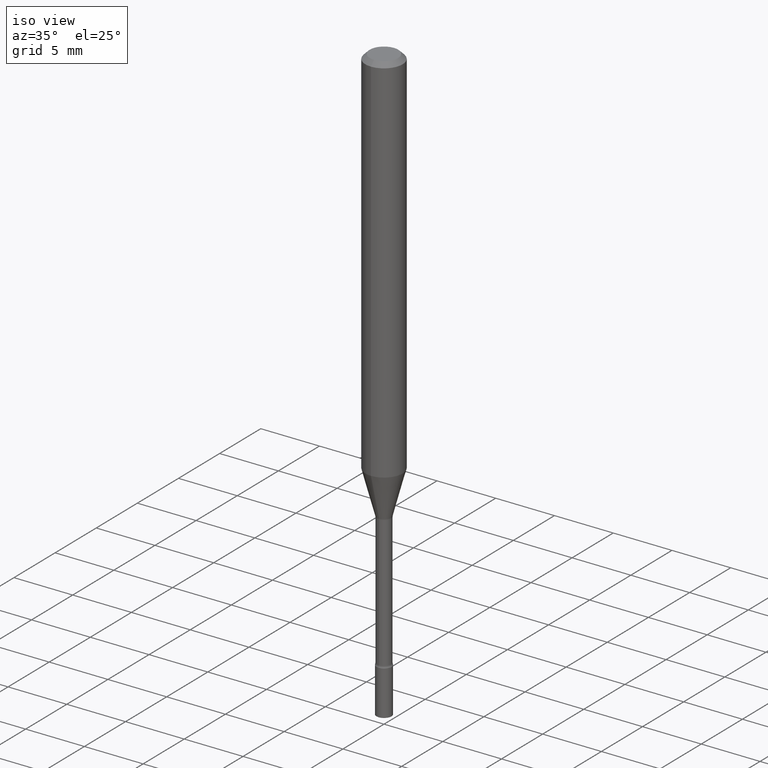
[diagram: clean part render]
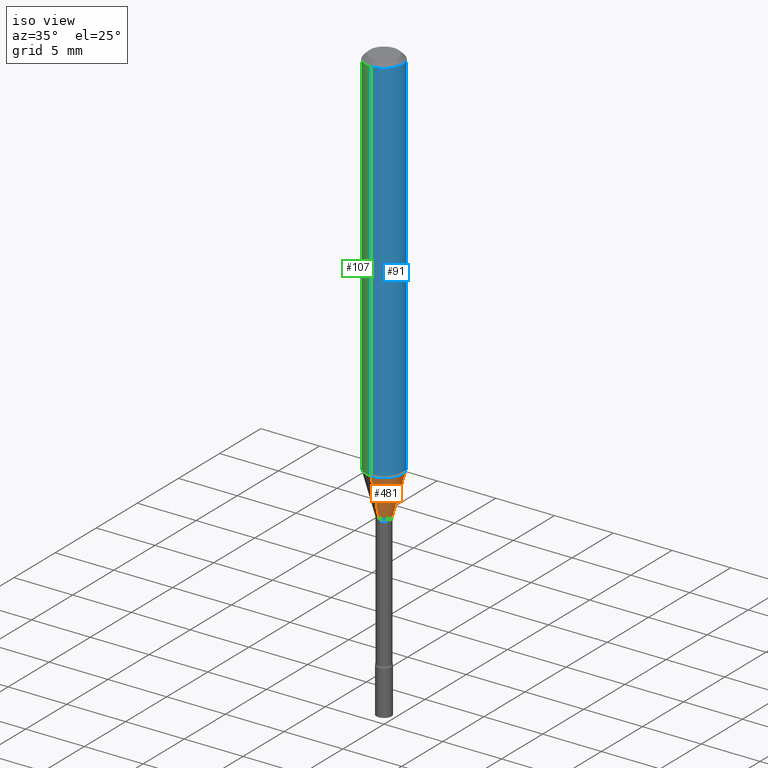
[diagram: same view with three faces highlighted in distinct colors, each labeled with its STEP entity id]
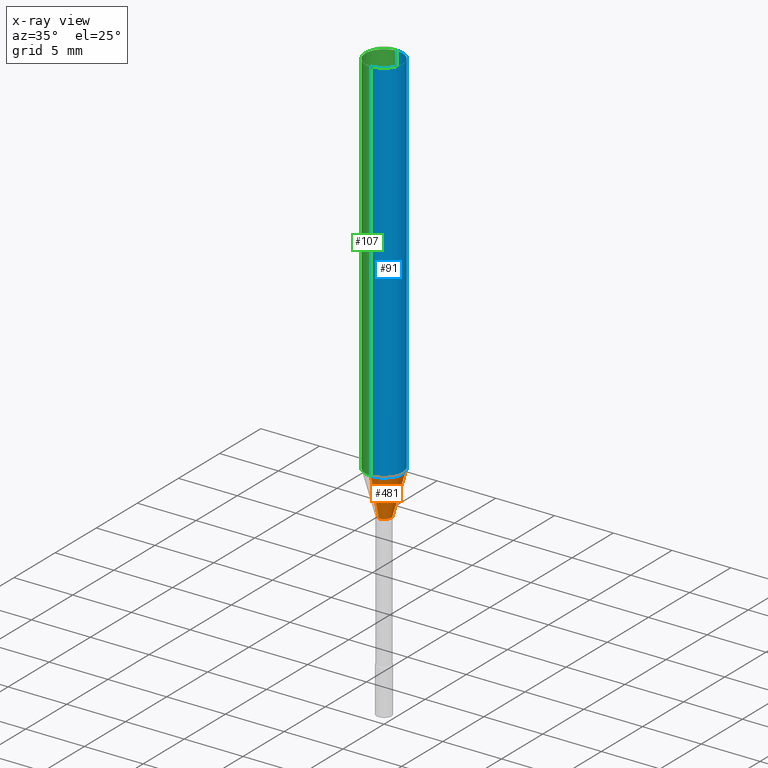
[diagram: x-ray of the same camera — body ghosted, the three highlighted faces saturated]
A machine part, iso view with three faces highlighted in distinct colors.
The next image is the same camera in x-ray (body ghosted, the three faces saturated) — at least one of them is partly hidden behind the body in this view.
Their STEP definitions:

[orange] entity #481 — the highlighted conical surface has half-angle 15 deg.
#11 = DIRECTION ( 'NONE',  ( -2.445460790589413958E-29, 3.491492817632439636E-15, 1.000000000000000000 ) ) ;
#20 = VECTOR ( 'NONE', #201, 39.37007874015748143 ) ;
#23 = CARTESIAN_POINT ( 'NONE',  ( 1.706092163947572763E-16, 0.02401111260565909691, -1.398092501787273179 ) ) ;
#43 = CARTESIAN_POINT ( 'NONE',  ( 3.067708334007688547E-29, -4.379903229688440417E-15, -1.254450018504814413 ) ) ;
#51 = AXIS2_PLACEMENT_3D ( 'NONE', #221, #458, #335 ) ;
#59 = ORIENTED_EDGE ( 'NONE', *, *, #497, .T. ) ;
#64 = VECTOR ( 'NONE', #284, 39.37007874015748143 ) ;
#95 = ORIENTED_EDGE ( 'NONE', *, *, #111, .T. ) ;
#102 = LINE ( 'NONE', #274, #20 ) ;
#111 = EDGE_CURVE ( 'NONE', #515, #122, #112, .T. ) ;
#112 = LINE ( 'NONE', #23, #64 ) ;
#116 = ORIENTED_EDGE ( 'NONE', *, *, #195, .F. ) ;
#122 = VERTEX_POINT ( 'NONE', #283 ) ;
#126 = DIRECTION ( 'NONE',  ( -6.982962677686265922E-15, -1.000000000000000000, 4.370956789862821150E-15 ) ) ;
#132 = FACE_OUTER_BOUND ( 'NONE', #290, .T. ) ;
#168 = DIRECTION ( 'NONE',  ( -2.445460790589413958E-29, 3.491492817632439636E-15, 1.000000000000000000 ) ) ;
#176 = CARTESIAN_POINT ( 'NONE',  ( -1.676687031750395996E-16, -0.02401111260566886341, -1.398092501787273179 ) ) ;
#184 = DIRECTION ( 'NONE',  ( -6.982962677686265133E-15, -1.000000000000000000, 0.000000000000000000 ) ) ;
#195 = EDGE_CURVE ( 'NONE', #419, #233, #102, .T. ) ;
#201 = DIRECTION ( 'NONE',  ( -1.807323732225330928E-15, -0.2588190451025182970, 0.9659258262890689783 ) ) ;
#221 = CARTESIAN_POINT ( 'NONE',  ( 3.418980394737836863E-29, -4.881429928376032930E-15, -1.398092501787273179 ) ) ;
#233 = VERTEX_POINT ( 'NONE', #399 ) ;
#238 = CIRCLE ( 'NONE', #447, 0.02401111260566398189 ) ;
#243 = AXIS2_PLACEMENT_3D ( 'NONE', #43, #168, #126 ) ;
#274 = CARTESIAN_POINT ( 'NONE',  ( -1.676687031750395996E-16, -0.02401111260566886341, -1.398092501787273179 ) ) ;
#283 = CARTESIAN_POINT ( 'NONE',  ( 4.440892098500930859E-16, 0.06249999999999559380, -1.254450018504814635 ) ) ;
#284 = DIRECTION ( 'NONE',  ( 1.839019923739601104E-15, 0.2588190451025250693, 0.9659258262890670910 ) ) ;
#290 = EDGE_LOOP ( 'NONE', ( #59, #95, #457, #116 ) ) ;
#310 = EDGE_CURVE ( 'NONE', #233, #122, #487, .T. ) ;
#335 = DIRECTION ( 'NONE',  ( -6.982962677686265133E-15, -1.000000000000000000, 0.000000000000000000 ) ) ;
#399 = CARTESIAN_POINT ( 'NONE',  ( -4.364351673553610517E-16, -0.06250000000000439926, -1.254450018504814190 ) ) ;
#418 = CARTESIAN_POINT ( 'NONE',  ( 3.418980394737836863E-29, -4.881429928376032930E-15, -1.398092501787273179 ) ) ;
#419 = VERTEX_POINT ( 'NONE', #176 ) ;
#447 = AXIS2_PLACEMENT_3D ( 'NONE', #418, #11, #184 ) ;
#455 = CONICAL_SURFACE ( 'NONE', #51, 0.02401111260566398189, 0.2617993877991502960 ) ;
#457 = ORIENTED_EDGE ( 'NONE', *, *, #310, .F. ) ;
#458 = DIRECTION ( 'NONE',  ( -2.445460790589413958E-29, 3.491492817632439636E-15, 1.000000000000000000 ) ) ;
#481 = ADVANCED_FACE ( 'NONE', ( #132 ), #455, .T. ) ;
#487 = CIRCLE ( 'NONE', #243, 0.06250000000000000000 ) ;
#493 = CARTESIAN_POINT ( 'NONE',  ( 3.073492131224253537E-16, 0.02401111260565909691, -1.398092501787273179 ) ) ;
#497 = EDGE_CURVE ( 'NONE', #419, #515, #238, .T. ) ;
#515 = VERTEX_POINT ( 'NONE', #493 ) ;

[blue] entity #91 — the highlighted cylindrical surface (edge-blend (fillet) strip) has radius 1.5875 mm, axis along (-0, 0, 1).
#1 = CARTESIAN_POINT ( 'NONE',  ( -4.364351673553912750E-16, -0.06250000000000005551, -0.01499999999999981209 ) ) ;
#33 = ORIENTED_EDGE ( 'NONE', *, *, #118, .F. ) ;
#43 = CARTESIAN_POINT ( 'NONE',  ( 3.067708334007688547E-29, -4.379903229688440417E-15, -1.254450018504814413 ) ) ;
#49 = VECTOR ( 'NONE', #363, 39.37007874015748143 ) ;
#63 = CARTESIAN_POINT ( 'NONE',  ( 0.000000000000000000, 0.000000000000000000, 0.000000000000000000 ) ) ;
#82 = CARTESIAN_POINT ( 'NONE',  ( 4.440892098500625669E-16, 0.06250000000000000000, -2.182183011020274772E-16 ) ) ;
#91 = ADVANCED_FACE ( 'NONE', ( #152 ), #507, .T. ) ;
#97 = CARTESIAN_POINT ( 'NONE',  ( 4.440892098500934804E-16, 0.06249999999999995143, -0.01500000000000024751 ) ) ;
#118 = EDGE_CURVE ( 'NONE', #233, #333, #280, .T. ) ;
#122 = VERTEX_POINT ( 'NONE', #283 ) ;
#126 = DIRECTION ( 'NONE',  ( -6.982962677686265922E-15, -1.000000000000000000, 4.370956789862821150E-15 ) ) ;
#152 = FACE_OUTER_BOUND ( 'NONE', #338, .T. ) ;
#168 = DIRECTION ( 'NONE',  ( -2.445460790589413958E-29, 3.491492817632439636E-15, 1.000000000000000000 ) ) ;
#215 = ORIENTED_EDGE ( 'NONE', *, *, #467, .F. ) ;
#216 = LINE ( 'NONE', #82, #49 ) ;
#217 = EDGE_CURVE ( 'NONE', #122, #473, #216, .T. ) ;
#230 = VECTOR ( 'NONE', #348, 39.37007874015748143 ) ;
#233 = VERTEX_POINT ( 'NONE', #399 ) ;
#237 = CARTESIAN_POINT ( 'NONE',  ( -4.364351673553916201E-16, -0.06250000000000000000, 2.182183011020274772E-16 ) ) ;
#243 = AXIS2_PLACEMENT_3D ( 'NONE', #43, #168, #126 ) ;
#259 = DIRECTION ( 'NONE',  ( -2.445460790589413958E-29, 3.491492817632439636E-15, 1.000000000000000000 ) ) ;
#280 = LINE ( 'NONE', #237, #230 ) ;
#283 = CARTESIAN_POINT ( 'NONE',  ( 4.440892098500930859E-16, 0.06249999999999559380, -1.254450018504814635 ) ) ;
#288 = ORIENTED_EDGE ( 'NONE', *, *, #217, .T. ) ;
#292 = ORIENTED_EDGE ( 'NONE', *, *, #310, .T. ) ;
#310 = EDGE_CURVE ( 'NONE', #233, #122, #487, .T. ) ;
#333 = VERTEX_POINT ( 'NONE', #1 ) ;
#337 = CARTESIAN_POINT ( 'NONE',  ( 3.668191185884128101E-31, -5.237239226448670621E-17, -0.01500000000000003067 ) ) ;
#338 = EDGE_LOOP ( 'NONE', ( #292, #288, #215, #33 ) ) ;
#348 = DIRECTION ( 'NONE',  ( -2.445460790589413958E-29, 3.491492817632440030E-15, 1.000000000000000000 ) ) ;
#352 = DIRECTION ( 'NONE',  ( -2.445460790589413958E-29, 3.491492817632439636E-15, 1.000000000000000000 ) ) ;
#363 = DIRECTION ( 'NONE',  ( -2.445460790589413958E-29, 3.491492817632440030E-15, 1.000000000000000000 ) ) ;
#389 = AXIS2_PLACEMENT_3D ( 'NONE', #337, #259, #416 ) ;
#399 = CARTESIAN_POINT ( 'NONE',  ( -4.364351673553610517E-16, -0.06250000000000439926, -1.254450018504814190 ) ) ;
#416 = DIRECTION ( 'NONE',  ( -6.982962677686265922E-15, -1.000000000000000000, 3.483106191921935554E-15 ) ) ;
#421 = CIRCLE ( 'NONE', #389, 0.06250000000000000000 ) ;
#467 = EDGE_CURVE ( 'NONE', #333, #473, #421, .T. ) ;
#468 = DIRECTION ( 'NONE',  ( -6.982962677686265922E-15, -1.000000000000000000, 3.491492817632439636E-15 ) ) ;
#473 = VERTEX_POINT ( 'NONE', #97 ) ;
#487 = CIRCLE ( 'NONE', #243, 0.06250000000000000000 ) ;
#507 = CYLINDRICAL_SURFACE ( 'NONE', #516, 0.06250000000000000000 ) ;
#516 = AXIS2_PLACEMENT_3D ( 'NONE', #63, #352, #468 ) ;

[green] entity #107 — the highlighted cylindrical surface (edge-blend (fillet) strip) has radius 1.5875 mm, axis along (-0, 0, 1).
#1 = CARTESIAN_POINT ( 'NONE',  ( -4.364351673553912750E-16, -0.06250000000000005551, -0.01499999999999981209 ) ) ;
#3 = AXIS2_PLACEMENT_3D ( 'NONE', #188, #15, #303 ) ;
#15 = DIRECTION ( 'NONE',  ( -2.445460790589413958E-29, 3.491492817632439636E-15, 1.000000000000000000 ) ) ;
#28 = DIRECTION ( 'NONE',  ( -2.445460790589413958E-29, 3.491492817632439636E-15, 1.000000000000000000 ) ) ;
#32 = EDGE_CURVE ( 'NONE', #122, #233, #482, .T. ) ;
#47 = AXIS2_PLACEMENT_3D ( 'NONE', #148, #235, #313 ) ;
#49 = VECTOR ( 'NONE', #363, 39.37007874015748143 ) ;
#67 = CARTESIAN_POINT ( 'NONE',  ( 3.668191185884128101E-31, -5.237239226448670621E-17, -0.01500000000000003067 ) ) ;
#81 = CIRCLE ( 'NONE', #330, 0.06250000000000000000 ) ;
#82 = CARTESIAN_POINT ( 'NONE',  ( 4.440892098500625669E-16, 0.06250000000000000000, -2.182183011020274772E-16 ) ) ;
#97 = CARTESIAN_POINT ( 'NONE',  ( 4.440892098500934804E-16, 0.06249999999999995143, -0.01500000000000024751 ) ) ;
#104 = CYLINDRICAL_SURFACE ( 'NONE', #47, 0.06250000000000000000 ) ;
#107 = ADVANCED_FACE ( 'NONE', ( #309 ), #104, .T. ) ;
#118 = EDGE_CURVE ( 'NONE', #233, #333, #280, .T. ) ;
#120 = ORIENTED_EDGE ( 'NONE', *, *, #118, .T. ) ;
#122 = VERTEX_POINT ( 'NONE', #283 ) ;
#148 = CARTESIAN_POINT ( 'NONE',  ( 0.000000000000000000, 0.000000000000000000, 0.000000000000000000 ) ) ;
#153 = EDGE_CURVE ( 'NONE', #473, #333, #81, .T. ) ;
#188 = CARTESIAN_POINT ( 'NONE',  ( 3.067708334007688547E-29, -4.379903229688440417E-15, -1.254450018504814413 ) ) ;
#216 = LINE ( 'NONE', #82, #49 ) ;
#217 = EDGE_CURVE ( 'NONE', #122, #473, #216, .T. ) ;
#230 = VECTOR ( 'NONE', #348, 39.37007874015748143 ) ;
#233 = VERTEX_POINT ( 'NONE', #399 ) ;
#235 = DIRECTION ( 'NONE',  ( -2.445460790589413958E-29, 3.491492817632439636E-15, 1.000000000000000000 ) ) ;
#237 = CARTESIAN_POINT ( 'NONE',  ( -4.364351673553916201E-16, -0.06250000000000000000, 2.182183011020274772E-16 ) ) ;
#276 = ORIENTED_EDGE ( 'NONE', *, *, #32, .T. ) ;
#280 = LINE ( 'NONE', #237, #230 ) ;
#283 = CARTESIAN_POINT ( 'NONE',  ( 4.440892098500930859E-16, 0.06249999999999559380, -1.254450018504814635 ) ) ;
#303 = DIRECTION ( 'NONE',  ( -6.982962677686265922E-15, -1.000000000000000000, 4.370956789862821150E-15 ) ) ;
#309 = FACE_OUTER_BOUND ( 'NONE', #500, .T. ) ;
#313 = DIRECTION ( 'NONE',  ( -6.982962677686265922E-15, -1.000000000000000000, 3.491492817632439636E-15 ) ) ;
#317 = ORIENTED_EDGE ( 'NONE', *, *, #153, .F. ) ;
#330 = AXIS2_PLACEMENT_3D ( 'NONE', #67, #28, #350 ) ;
#333 = VERTEX_POINT ( 'NONE', #1 ) ;
#348 = DIRECTION ( 'NONE',  ( -2.445460790589413958E-29, 3.491492817632440030E-15, 1.000000000000000000 ) ) ;
#350 = DIRECTION ( 'NONE',  ( -6.982962677686265922E-15, -1.000000000000000000, 3.483106191921935554E-15 ) ) ;
#363 = DIRECTION ( 'NONE',  ( -2.445460790589413958E-29, 3.491492817632440030E-15, 1.000000000000000000 ) ) ;
#399 = CARTESIAN_POINT ( 'NONE',  ( -4.364351673553610517E-16, -0.06250000000000439926, -1.254450018504814190 ) ) ;
#443 = ORIENTED_EDGE ( 'NONE', *, *, #217, .F. ) ;
#473 = VERTEX_POINT ( 'NONE', #97 ) ;
#482 = CIRCLE ( 'NONE', #3, 0.06250000000000000000 ) ;
#500 = EDGE_LOOP ( 'NONE', ( #443, #276, #120, #317 ) ) ;